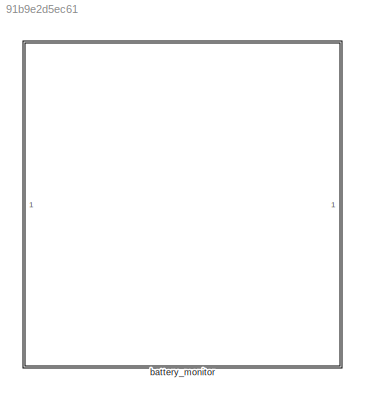
MODEL slx_91b9e2d5ec61
KIND library
CONFIG AbsTol = auto
CONFIG EnableMultiTasking = off
CONFIG FixedStep = auto
CONFIG MaxStep = auto
CONFIG MinStep = auto
CONFIG RelTol = 1e-3
CONFIG SampleTimeConstraint = Unconstrained
CONFIG SolverName = VariableStepAuto
CONFIG StartTime = 0.0
CONFIG StopTime = 10.0
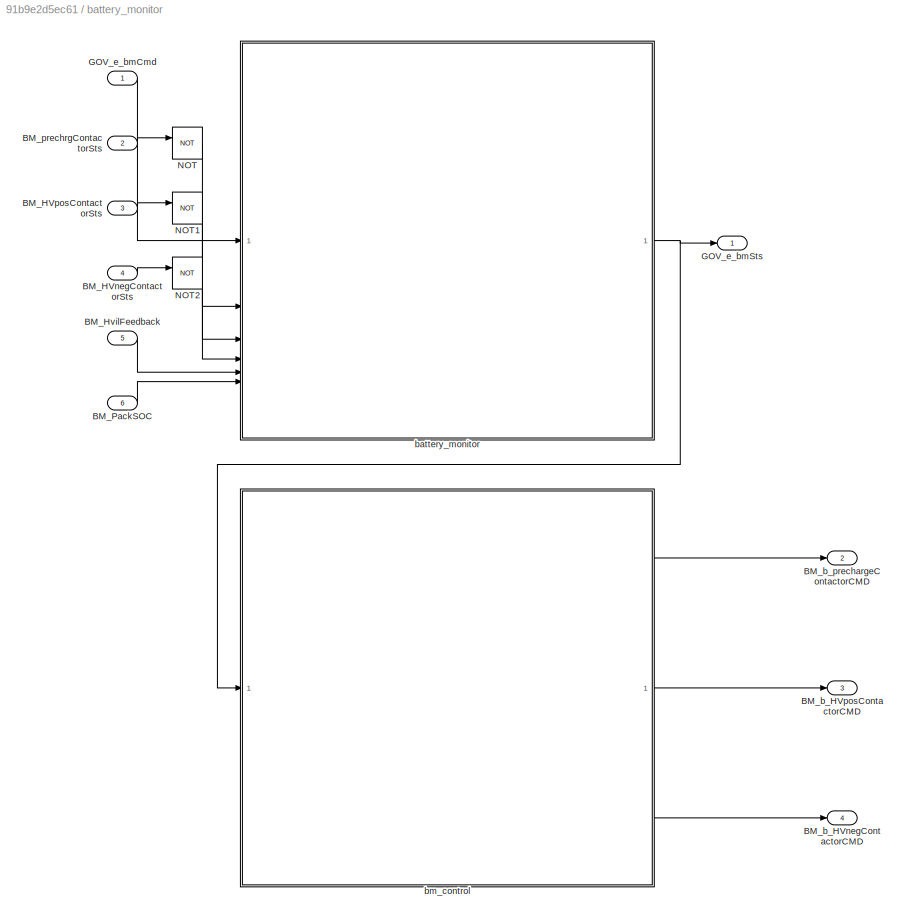
BLOCK [SubSystem] battery_monitor
BLOCK [Inport] battery_monitor/BM_HVnegContactorSts
  Port = 4
BLOCK [Inport] battery_monitor/BM_HVposContactorSts
  Port = 3
BLOCK [Inport] battery_monitor/BM_HvilFeedback
  Port = 5
BLOCK [Inport] battery_monitor/BM_PackSOC
  Port = 6
BLOCK [Outport] battery_monitor/BM_b_HVnegContactorCMD
  Port = 4
BLOCK [Outport] battery_monitor/BM_b_HVposContactorCMD
  Port = 3
BLOCK [Outport] battery_monitor/BM_b_prechargeContactorCMD
  Port = 2
BLOCK [Inport] battery_monitor/BM_prechrgContactorSts
  Port = 2
BLOCK [Inport] battery_monitor/GOV_e_bmCmd
BLOCK [Outport] battery_monitor/GOV_e_bmSts
BLOCK [Logic] battery_monitor/NOT
  AllPortsSameDT = off
  IconShape = distinctive
  Operator = NOT
  OutDataTypeStr = boolean
BLOCK [Logic] battery_monitor/NOT1
  AllPortsSameDT = off
  IconShape = distinctive
  Operator = NOT
  OutDataTypeStr = boolean
BLOCK [Logic] battery_monitor/NOT2
  AllPortsSameDT = off
  IconShape = distinctive
  Operator = NOT
  OutDataTypeStr = boolean
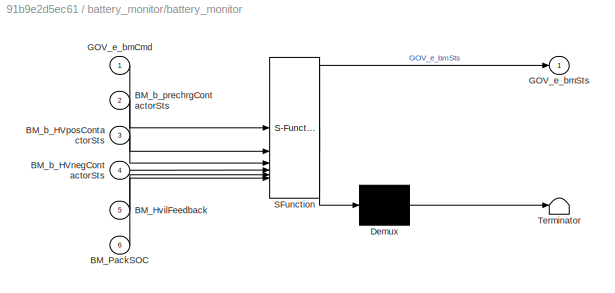
BLOCK [SubSystem] battery_monitor/battery_monitor
  ErrorFcn = Stateflow.Translate.translate
  PermitHierarchicalResolution = ExplicitOnly
  SFBlockType = Chart
  TreatAsAtomicUnit = on
BLOCK [Demux] battery_monitor/battery_monitor/ Demux 
  Outputs = 1
BLOCK [S-Function] battery_monitor/battery_monitor/ SFunction 
  EnableBusSupport = off
  FunctionName = sf_sfun
  PortCounts = [6 2]
  SFcnIsStateOwnerBlock = off
  SFunctionDeploymentMode = off
  Tag = Stateflow S-Function 4
BLOCK [Terminator] battery_monitor/battery_monitor/ Terminator 
BLOCK [Inport] battery_monitor/battery_monitor/BM_HvilFeedback
  Port = 5
BLOCK [Inport] battery_monitor/battery_monitor/BM_PackSOC
  Port = 6
BLOCK [Inport] battery_monitor/battery_monitor/BM_b_HVnegContactorSts
  Port = 4
BLOCK [Inport] battery_monitor/battery_monitor/BM_b_HVposContactorSts
  Port = 3
BLOCK [Inport] battery_monitor/battery_monitor/BM_b_prechrgContactorSts
  Port = 2
BLOCK [Inport] battery_monitor/battery_monitor/GOV_e_bmCmd
BLOCK [Outport] battery_monitor/battery_monitor/GOV_e_bmSts
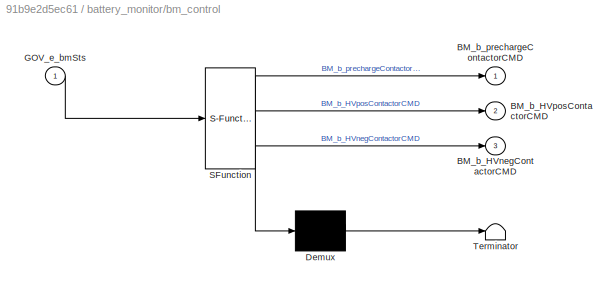
BLOCK [SubSystem] battery_monitor/bm_control
  ErrorFcn = Stateflow.Translate.translate
  PermitHierarchicalResolution = ExplicitOnly
  SFBlockType = Chart
  TreatAsAtomicUnit = on
BLOCK [Demux] battery_monitor/bm_control/ Demux 
  Outputs = 1
BLOCK [S-Function] battery_monitor/bm_control/ SFunction 
  EnableBusSupport = off
  FunctionName = sf_sfun
  PortCounts = [1 4]
  SFcnIsStateOwnerBlock = off
  SFunctionDeploymentMode = off
  Tag = Stateflow S-Function 5
BLOCK [Terminator] battery_monitor/bm_control/ Terminator 
BLOCK [Outport] battery_monitor/bm_control/BM_b_HVnegContactorCMD
  Port = 3
BLOCK [Outport] battery_monitor/bm_control/BM_b_HVposContactorCMD
  Port = 2
BLOCK [Outport] battery_monitor/bm_control/BM_b_prechargeContactorCMD
BLOCK [Inport] battery_monitor/bm_control/GOV_e_bmSts
LINE battery_monitor/BM_HVnegContactorSts:1 -> battery_monitor/NOT2:1
LINE battery_monitor/BM_HVposContactorSts:1 -> battery_monitor/NOT1:1
LINE battery_monitor/BM_HvilFeedback:1 -> battery_monitor/battery_monitor:5
LINE battery_monitor/BM_PackSOC:1 -> battery_monitor/battery_monitor:6
LINE battery_monitor/BM_prechrgContactorSts:1 -> battery_monitor/NOT:1
LINE battery_monitor/GOV_e_bmCmd:1 -> battery_monitor/battery_monitor:1
LINE battery_monitor/NOT1:1 -> battery_monitor/battery_monitor:3
LINE battery_monitor/NOT2:1 -> battery_monitor/battery_monitor:4
LINE battery_monitor/NOT:1 -> battery_monitor/battery_monitor:2
NET battery_monitor/battery_monitor:1 -> battery_monitor/GOV_e_bmSts:1, battery_monitor/bm_control:1
LINE battery_monitor/bm_control:1 -> battery_monitor/BM_b_prechargeContactorCMD:1
LINE battery_monitor/bm_control:2 -> battery_monitor/BM_b_HVposContactorCMD:1
LINE battery_monitor/bm_control:3 -> battery_monitor/BM_b_HVnegContactorCMD:1
note: NET lines group one-source signal fan-out (src -> all destinations, sorted); 1:1 wires keep LINE
CHART battery_monitor/battery_monitor states=9 transitions=10
  STATE_LABEL 'InitialState\nentry:\nGOV_e_bmSts = ...\n    BM_STATUSES.BM_INIT;'
  STATE_LABEL 'StartupSuperstate'
  STATE_LABEL 'StartupState1\nentry:\nGOV_e_bmSts = BM_STATUSES.BM_IDLE;'
  STATE_LABEL 'StartupState\nentry:\nGOV_e_bmSts = BM_STATUSES.BM_STARTUP;'
  STATE_LABEL 'InitializePrechargeState\nentry:\nGOV_e_bmSts = BM_STATUSES.INIT_PRECHARGE;'
  STATE_LABEL 'PrechargeState\nentry:\nGOV_e_bmSts = BM_STATUSES.PRECHARGE;'
  STATE_LABEL 'RunningState\nentry:\nGOV_e_bmSts = BM_STATUSES.BM_RUNNING;'
  STATE_LABEL '[BM_b_prechrgContactorSts == 0 && BM_b_HVnegContactorSts == 1 && BM_b_HVposContactorSts == 0]'
  STATE_LABEL '[BM_b_prechrgContactorSts == 1 && BM_b_HVnegContactorSts == 1 && BM_b_HVposContactorSts == 0]'
  STATE_LABEL '[BM_b_prechrgContactorSts == 1 && BM_b_HVnegContactorSts == 1 && BM_b_HVposContactorSts == 1]'
  STATE_LABEL '[BM_b_prechrgContactorSts == 0 && BM_b_HVnegContactorSts == 1 && BM_b_HVposContactorSts == 1]'
  STATE_LABEL '[BM_b_prechrgContactorSts == 0 && BM_b_HVnegContactorSts == 1 && BM_b_HVposContactorSts == 1]'
  STATE_LABEL 'StartupState1\nentry:\nGOV_e_bmSts = BM_STATUSES.BM_IDLE;'
  STATE_LABEL 'StartupState\nentry:\nGOV_e_bmSts = BM_STATUSES.BM_STARTUP;'
  STATE_LABEL 'InitializePrechargeState\nentry:\nGOV_e_bmSts = BM_STATUSES.INIT_PRECHARGE;'
  STATE_LABEL 'PrechargeState\nentry:\nGOV_e_bmSts = BM_STATUSES.PRECHARGE;'
  STATE_LABEL 'RunningState\nentry:\nGOV_e_bmSts = BM_STATUSES.BM_RUNNING;'
  STATE_LABEL 'InterruptState\n%Lost HVIL during startup or running\nen:\nGOV_e_bmSts = ...\n    BM_STATUSES.HVIL_INTERRUPT;'
  STATE_LABEL 'LowSoC\n%HV battery low\nen:\nGOV_e_bmSts = ...\n    BM_STATUSES.BM_LOW_SOC;'
CHART battery_monitor/bm_control states=6 transitions=7
  STATE_LABEL 'StartupCMD\nen:\nBM_b_prechargeContactorCMD = 0;\nBM_b_HVnegContactorCMD = 0;\nBM_b_HVposContactorCMD = 0;\n'
  STATE_LABEL 'StartupSuperstate'
  STATE_LABEL 'Close_HVneg1\nen:\nBM_b_prechargeContactorCMD = 0;\nBM_b_HVnegContactorCMD = 1;\nBM_b_HVposContactorCMD = 0;\n'
  STATE_LABEL 'Close_precharge\nen:\nBM_b_prechargeContactorCMD = 1;\nBM_b_HVnegContactorCMD = 1;\nBM_b_HVposContactorCMD = 0;\n'
  STATE_LABEL 'Close_HVpos\nen:\nBM_b_prechargeContactorCMD = 1;\nBM_b_HVnegContactorCMD = 1;\nBM_b_HVposContactorCMD = 1;\n'
  STATE_LABEL 'Open_precharge\nen, du:\nBM_b_prechargeContactorCMD = 0;\nBM_b_HVnegContactorCMD = 1;\nBM_b_HVposContactorCMD = 1;\n'
  STATE_LABEL 'after(100,msec)[GOV_e_bmSts == BM_STATUSES.BM_STARTUP]'
  STATE_LABEL 'after(6500,msec)[GOV_e_bmSts == BM_STATUSES.INIT_PRECHARGE]'
  STATE_LABEL 'after(100,msec)[GOV_e_bmSts == BM_STATUSES.PRECHARGE]'
  STATE_LABEL '[GOV_e_bmSts == BM_STATUSES.BM_RUNNING]'
  STATE_LABEL 'Close_HVneg1\nen:\nBM_b_prechargeContactorCMD = 0;\nBM_b_HVnegContactorCMD = 1;\nBM_b_HVposContactorCMD = 0;\n'
  STATE_LABEL 'Close_precharge\nen:\nBM_b_prechargeContactorCMD = 1;\nBM_b_HVnegContactorCMD = 1;\nBM_b_HVposContactorCMD = 0;\n'
  STATE_LABEL 'Close_HVpos\nen:\nBM_b_prechargeContactorCMD = 1;\nBM_b_HVnegContactorCMD = 1;\nBM_b_HVposContactorCMD = 1;\n'
  STATE_LABEL 'Open_precharge\nen, du:\nBM_b_prechargeContactorCMD = 0;\nBM_b_HVnegContactorCMD = 1;\nBM_b_HVposContactorCMD = 1;\n'
CHART  states=0 transitions=0
CHART  states=0 transitions=0
